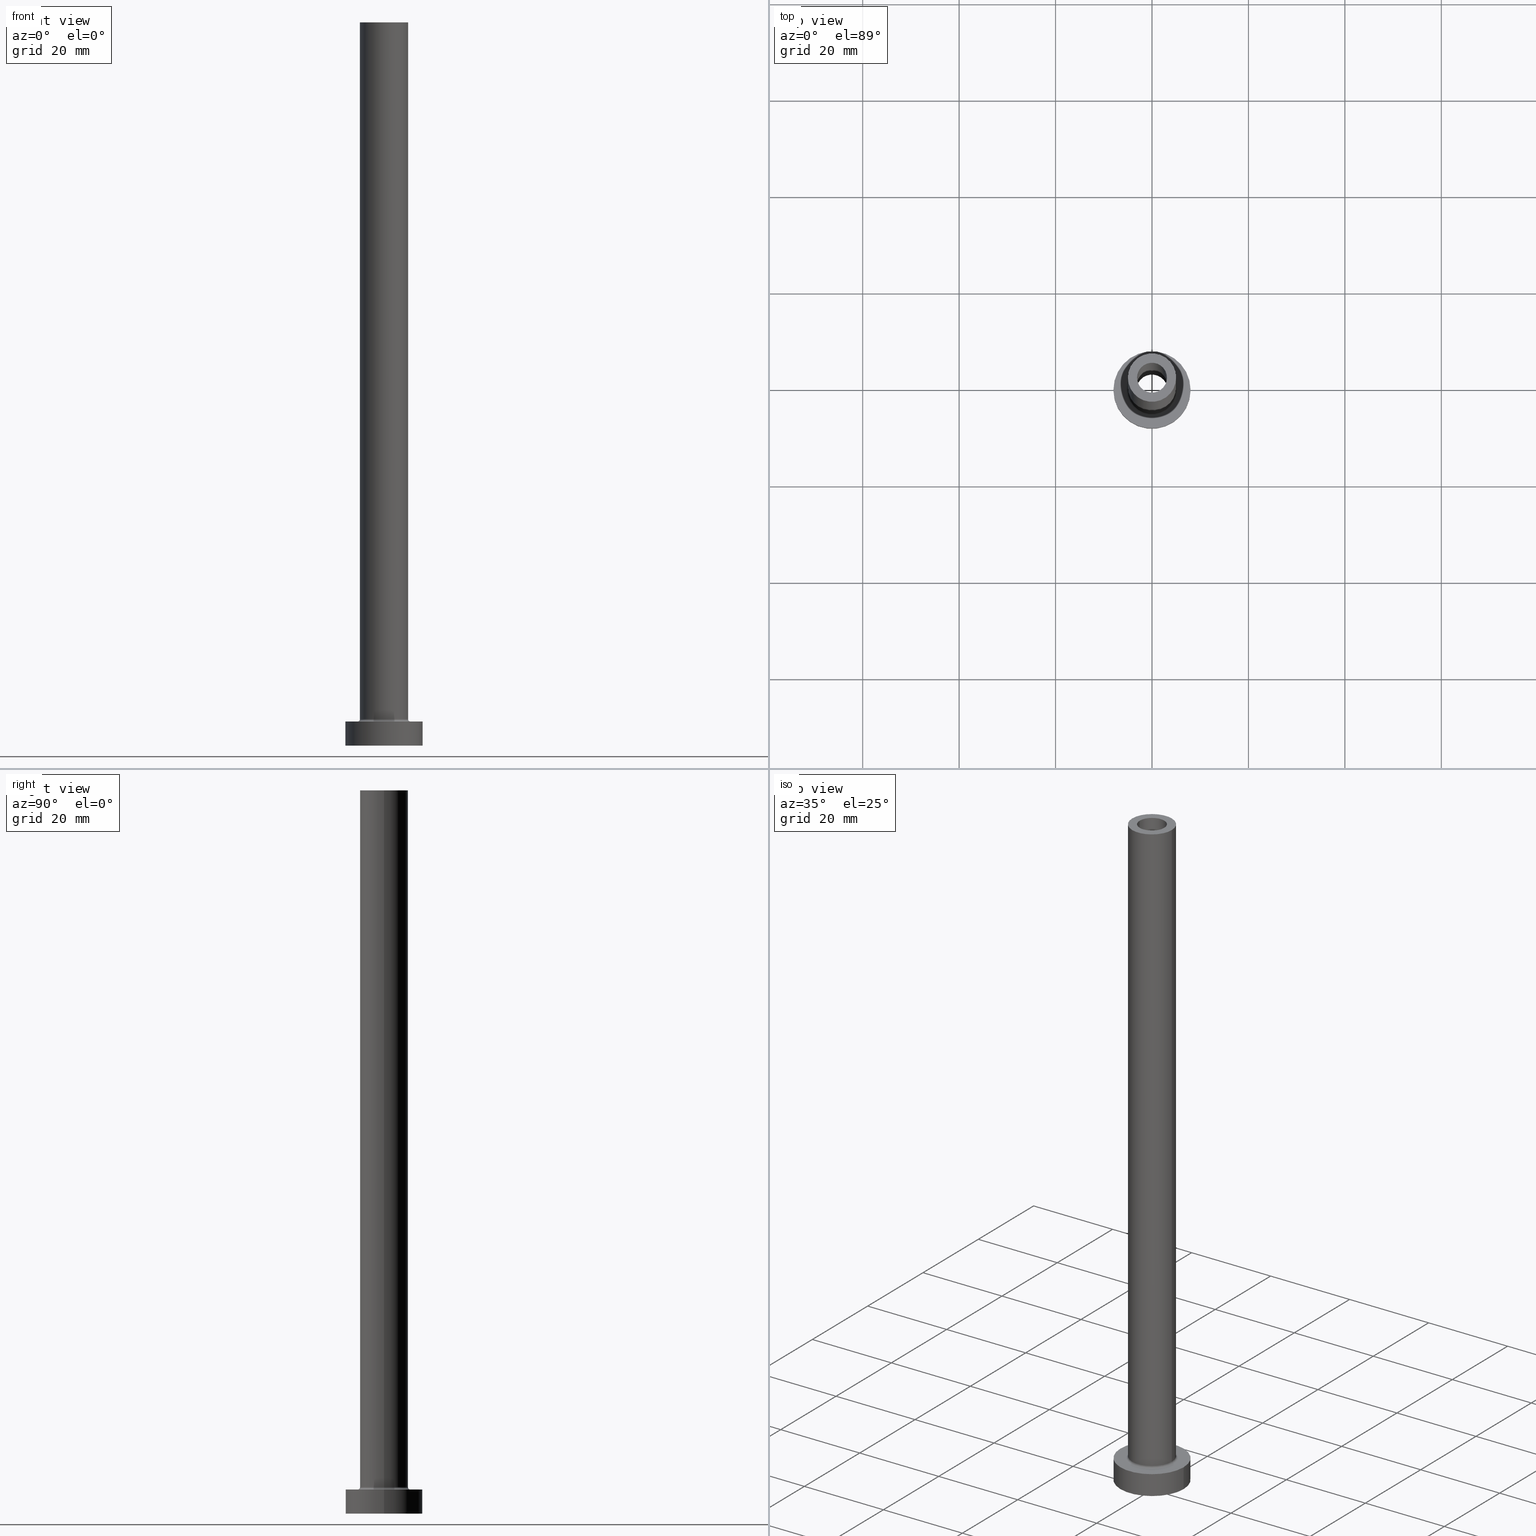
[diagram: canonical four-view strip — front | top / right | iso, engineering-drawing reading convention]
A machine part, canonical four-view strip (front | top / right | iso — engineering-drawing reading convention). The complete STEP part file that produces these views, byte-faithful:
ISO-10303-21;
HEADER;
FILE_DESCRIPTION (( 'STEP AP203' ),
    '1' );
FILE_NAME ('f30a.STEP',
    '2023-02-13T09:12:37',
    ( '' ),
    ( '' ),
    'SwSTEP 2.0',
    'SolidWorks 2019',
    '' );
FILE_SCHEMA (( 'CONFIG_CONTROL_DESIGN' ));
ENDSEC;

DATA;
#1 = DIRECTION ( 'NONE',  ( 0.000000000000000000, 0.000000000000000000, 1.000000000000000000 ) ) ;
#2 = CIRCLE ( 'NONE', #331, 3.250000000000000444 ) ;
#3 = ORIENTED_EDGE ( 'NONE', *, *, #178, .T. ) ;
#4 =( GEOMETRIC_REPRESENTATION_CONTEXT ( 3 ) GLOBAL_UNCERTAINTY_ASSIGNED_CONTEXT ( ( #282 ) ) GLOBAL_UNIT_ASSIGNED_CONTEXT ( ( #297, #262, #376 ) ) REPRESENTATION_CONTEXT ( 'NONE', 'WORKASPACE' ) );
#5 = EDGE_CURVE ( 'NONE', #99, #105, #129, .T. ) ;
#6 = VERTEX_POINT ( 'NONE', #164 ) ;
#7 = DIRECTION ( 'NONE',  ( 0.000000000000000000, 0.000000000000000000, 1.000000000000000000 ) ) ;
#8 = ORIENTED_EDGE ( 'NONE', *, *, #428, .F. ) ;
#9 = CIRCLE ( 'NONE', #196, 5.500000000000000000 ) ;
#10 = DIRECTION ( 'NONE',  ( 0.000000000000000000, -1.000000000000000000, 0.000000000000000000 ) ) ;
#11 = ADVANCED_FACE ( 'NONE', ( #56, #444 ), #168, .T. ) ;
#12 = VERTEX_POINT ( 'NONE', #343 ) ;
#13 = AXIS2_PLACEMENT_3D ( 'NONE', #446, #51, #309 ) ;
#14 = DIRECTION ( 'NONE',  ( 1.224646799147353207E-16, 1.000000000000000000, -0.000000000000000000 ) ) ;
#15 = DATE_AND_TIME ( #314, #85 ) ;
#16 = VECTOR ( 'NONE', #84, 1000.000000000000000 ) ;
#17 = ORIENTED_EDGE ( 'NONE', *, *, #428, .T. ) ;
#18 = COORDINATED_UNIVERSAL_TIME_OFFSET ( 1, 0, .AHEAD. ) ;
#19 = DIRECTION ( 'NONE',  ( 1.000000000000000000, 0.000000000000000000, 0.000000000000000000 ) ) ;
#20 = MANIFOLD_SOLID_BREP ( 'Odebrat vysunut�m4', #215 ) ;
#21 = DATE_AND_TIME ( #225, #305 ) ;
#22 = ORIENTED_EDGE ( 'NONE', *, *, #5, .T. ) ;
#23 = AXIS2_PLACEMENT_3D ( 'NONE', #217, #427, #285 ) ;
#24 = APPROVAL ( #417, 'NEUR�EN�' ) ;
#25 = CARTESIAN_POINT ( 'NONE',  ( 0.000000000000000000, 0.000000000000000000, 0.000000000000000000 ) ) ;
#26 = VERTEX_POINT ( 'NONE', #224 ) ;
#27 = EDGE_LOOP ( 'NONE', ( #117, #408, #432, #294 ) ) ;
#28 = DIRECTION ( 'NONE',  ( -1.000000000000000000, 0.000000000000000000, 0.000000000000000000 ) ) ;
#29 = ORIENTED_EDGE ( 'NONE', *, *, #130, .T. ) ;
#30 = PERSON_AND_ORGANIZATION_ROLE ( 'creator' ) ;
#31 = APPROVAL_PERSON_ORGANIZATION ( #388, #203, #457 ) ;
#32 = AXIS2_PLACEMENT_3D ( 'NONE', #280, #106, #137 ) ;
#33 = DIRECTION ( 'NONE',  ( 0.000000000000000000, 0.000000000000000000, -1.000000000000000000 ) ) ;
#34 = EDGE_CURVE ( 'NONE', #157, #363, #402, .T. ) ;
#35 = FACE_OUTER_BOUND ( 'NONE', #445, .T. ) ;
#36 = CARTESIAN_POINT ( 'NONE',  ( 3.250000000000000444, 3.980102097228898231E-16, 0.000000000000000000 ) ) ;
#37 = APPROVAL_STATUS ( 'not_yet_approved' ) ;
#38 = EDGE_CURVE ( 'NONE', #52, #363, #438, .T. ) ;
#39 = DIRECTION ( 'NONE',  ( 1.000000000000000000, 0.000000000000000000, 0.000000000000000000 ) ) ;
#40 = DIRECTION ( 'NONE',  ( 1.000000000000000000, 0.000000000000000000, 0.000000000000000000 ) ) ;
#41 = LINE ( 'NONE', #259, #93 ) ;
#42 = DIRECTION ( 'NONE',  ( 0.000000000000000000, 0.000000000000000000, 1.000000000000000000 ) ) ;
#43 = EDGE_CURVE ( 'NONE', #250, #65, #395, .T. ) ;
#44 = EDGE_LOOP ( 'NONE', ( #109, #29, #357, #8 ) ) ;
#45 = DIRECTION ( 'NONE',  ( 0.000000000000000000, 0.000000000000000000, 1.000000000000000000 ) ) ;
#46 = DIRECTION ( 'NONE',  ( 0.000000000000000000, 0.000000000000000000, 1.000000000000000000 ) ) ;
#47 = CC_DESIGN_APPROVAL ( #24, ( #322 ) ) ;
#48 = TOROIDAL_SURFACE ( 'NONE', #379, 5.500000000000000000, 0.5000000000000000000 ) ;
#49 = CARTESIAN_POINT ( 'NONE',  ( 0.000000000000000000, 0.000000000000000000, 105.0000000000000000 ) ) ;
#50 = CARTESIAN_POINT ( 'NONE',  ( 0.000000000000000000, 0.000000000000000000, 105.0000000000000000 ) ) ;
#51 = DIRECTION ( 'NONE',  ( 0.000000000000000000, 0.000000000000000000, 1.000000000000000000 ) ) ;
#52 = VERTEX_POINT ( 'NONE', #201 ) ;
#53 = LINE ( 'NONE', #128, #76 ) ;
#54 = EDGE_CURVE ( 'NONE', #58, #170, #453, .T. ) ;
#55 = CARTESIAN_POINT ( 'NONE',  ( -3.250000000000000444, 0.000000000000000000, 114.1923881554251068 ) ) ;
#56 = FACE_BOUND ( 'NONE', #283, .T. ) ;
#57 = VERTEX_POINT ( 'NONE', #345 ) ;
#58 = VERTEX_POINT ( 'NONE', #406 ) ;
#59 = ADVANCED_FACE ( 'NONE', ( #135 ), #193, .T. ) ;
#60 = CARTESIAN_POINT ( 'NONE',  ( 8.000000000000000000, 9.797174393178825657E-16, 5.000000000000000000 ) ) ;
#61 = ORIENTED_EDGE ( 'NONE', *, *, #175, .T. ) ;
#62 = AXIS2_PLACEMENT_3D ( 'NONE', #134, #373, #409 ) ;
#63 = AXIS2_PLACEMENT_3D ( 'NONE', #185, #1, #287 ) ;
#64 = CC_DESIGN_PERSON_AND_ORGANIZATION_ASSIGNMENT ( #142, #333, ( #410 ) ) ;
#65 = VERTEX_POINT ( 'NONE', #306 ) ;
#66 = EDGE_CURVE ( 'NONE', #105, #236, #120, .T. ) ;
#67 = PRODUCT_RELATED_PRODUCT_CATEGORY ( 'detail', '', ( #73 ) ) ;
#68 = AXIS2_PLACEMENT_3D ( 'NONE', #103, #247, #28 ) ;
#69 = FACE_BOUND ( 'NONE', #184, .T. ) ;
#70 = ORIENTED_EDGE ( 'NONE', *, *, #151, .F. ) ;
#71 = CC_DESIGN_PERSON_AND_ORGANIZATION_ASSIGNMENT ( #233, #199, ( #322 ) ) ;
#72 = FACE_OUTER_BOUND ( 'NONE', #27, .T. ) ;
#73 = PRODUCT ( 'f30a', 'f30a', '', ( #202 ) ) ;
#74 = DIRECTION ( 'NONE',  ( -0.000000000000000000, -0.000000000000000000, -1.000000000000000000 ) ) ;
#75 = AXIS2_PLACEMENT_3D ( 'NONE', #420, #200, #344 ) ;
#76 = VECTOR ( 'NONE', #330, 1000.000000000000000 ) ;
#77 = CARTESIAN_POINT ( 'NONE',  ( 0.000000000000000000, 0.000000000000000000, 5.000000000000000000 ) ) ;
#78 = CC_DESIGN_SECURITY_CLASSIFICATION ( #91, ( #410 ) ) ;
#79 = EDGE_LOOP ( 'NONE', ( #441, #132 ) ) ;
#80 = DIRECTION ( 'NONE',  ( -0.000000000000000000, -0.000000000000000000, -1.000000000000000000 ) ) ;
#81 = ADVANCED_FACE ( 'NONE', ( #370 ), #195, .F. ) ;
#82 = VECTOR ( 'NONE', #174, 1000.000000000000000 ) ;
#83 = ORIENTED_EDGE ( 'NONE', *, *, #130, .F. ) ;
#84 = DIRECTION ( 'NONE',  ( 0.000000000000000000, 0.000000000000000000, -1.000000000000000000 ) ) ;
#85 = LOCAL_TIME ( 10, 12, 37.00000000000000000, #440 ) ;
#86 = CARTESIAN_POINT ( 'NONE',  ( 0.000000000000000000, 0.000000000000000000, 150.0000000000000000 ) ) ;
#87 = ORIENTED_EDGE ( 'NONE', *, *, #267, .T. ) ;
#88 = DIRECTION ( 'NONE',  ( 1.000000000000000000, 0.000000000000000000, 0.000000000000000000 ) ) ;
#89 = ORIENTED_EDGE ( 'NONE', *, *, #66, .T. ) ;
#90 = DATE_AND_TIME ( #136, #167 ) ;
#91 = SECURITY_CLASSIFICATION ( '', '', #156 ) ;
#92 = DESIGN_CONTEXT ( 'detailed design', #323, 'design' ) ;
#93 = VECTOR ( 'NONE', #220, 1000.000000000000000 ) ;
#94 = DIRECTION ( 'NONE',  ( -1.000000000000000000, 0.000000000000000000, 0.000000000000000000 ) ) ;
#95 = EDGE_CURVE ( 'NONE', #57, #58, #436, .T. ) ;
#96 = EDGE_LOOP ( 'NONE', ( #437, #459 ) ) ;
#97 = CIRCLE ( 'NONE', #416, 3.250000000000000444 ) ;
#98 = CARTESIAN_POINT ( 'NONE',  ( 0.000000000000000000, 0.000000000000000000, 150.0000000000000000 ) ) ;
#99 = VERTEX_POINT ( 'NONE', #372 ) ;
#100 = APPROVAL_ROLE ( '' ) ;
#101 = DIRECTION ( 'NONE',  ( 0.000000000000000000, 0.000000000000000000, 1.000000000000000000 ) ) ;
#102 = AXIS2_PLACEMENT_3D ( 'NONE', #50, #364, #191 ) ;
#103 = CARTESIAN_POINT ( 'NONE',  ( 0.000000000000000000, 0.000000000000000000, 114.1923881554251068 ) ) ;
#104 = EDGE_CURVE ( 'NONE', #57, #112, #97, .T. ) ;
#105 = VERTEX_POINT ( 'NONE', #126 ) ;
#106 = DIRECTION ( 'NONE',  ( 0.000000000000000000, 0.000000000000000000, 1.000000000000000000 ) ) ;
#107 = ORGANIZATION ( 'NEUR�EN�', 'NEUR�EN�', '' ) ;
#108 = CIRCLE ( 'NONE', #253, 5.000000000000000000 ) ;
#109 = ORIENTED_EDGE ( 'NONE', *, *, #43, .T. ) ;
#110 = CC_DESIGN_PERSON_AND_ORGANIZATION_ASSIGNMENT ( #228, #171, ( #73 ) ) ;
#111 = DIRECTION ( 'NONE',  ( 1.000000000000000000, 0.000000000000000000, 0.000000000000000000 ) ) ;
#112 = VERTEX_POINT ( 'NONE', #413 ) ;
#113 = DIRECTION ( 'NONE',  ( 0.000000000000000000, 0.000000000000000000, 1.000000000000000000 ) ) ;
#114 = CARTESIAN_POINT ( 'NONE',  ( 0.000000000000000000, 0.000000000000000000, 5.000000000000000000 ) ) ;
#115 = LOCAL_TIME ( 10, 12, 37.00000000000000000, #18 ) ;
#116 = ORIENTED_EDGE ( 'NONE', *, *, #218, .F. ) ;
#117 = ORIENTED_EDGE ( 'NONE', *, *, #175, .F. ) ;
#118 = CARTESIAN_POINT ( 'NONE',  ( 0.000000000000000000, 0.000000000000000000, 105.0000000000000000 ) ) ;
#119 = ORIENTED_EDGE ( 'NONE', *, *, #143, .T. ) ;
#120 = CIRCLE ( 'NONE', #237, 8.000000000000000000 ) ;
#121 = DIRECTION ( 'NONE',  ( 0.000000000000000000, 0.000000000000000000, 1.000000000000000000 ) ) ;
#122 = PERSON_AND_ORGANIZATION_ROLE ( 'classification_officer' ) ;
#123 = CARTESIAN_POINT ( 'NONE',  ( 0.000000000000000000, 0.000000000000000000, 150.0000000000000000 ) ) ;
#124 = EDGE_CURVE ( 'NONE', #6, #52, #350, .T. ) ;
#125 = DIRECTION ( 'NONE',  ( 0.000000000000000000, 0.000000000000000000, 1.000000000000000000 ) ) ;
#126 = CARTESIAN_POINT ( 'NONE',  ( 8.000000000000000000, 9.797174393178825657E-16, 0.000000000000000000 ) ) ;
#127 = EDGE_LOOP ( 'NONE', ( #183, #272, #150, #87 ) ) ;
#128 = CARTESIAN_POINT ( 'NONE',  ( -3.100000000000000089, 0.000000000000000000, 150.0000000000000000 ) ) ;
#129 = LINE ( 'NONE', #60, #320 ) ;
#130 = EDGE_CURVE ( 'NONE', #65, #163, #347, .T. ) ;
#131 = CARTESIAN_POINT ( 'NONE',  ( 0.000000000000000000, 0.000000000000000000, 0.000000000000000000 ) ) ;
#132 = ORIENTED_EDGE ( 'NONE', *, *, #218, .T. ) ;
#133 = DIRECTION ( 'NONE',  ( -0.000000000000000000, -0.000000000000000000, -1.000000000000000000 ) ) ;
#134 = CARTESIAN_POINT ( 'NONE',  ( 0.000000000000000000, 0.000000000000000000, 0.000000000000000000 ) ) ;
#135 = FACE_OUTER_BOUND ( 'NONE', #275, .T. ) ;
#136 = CALENDAR_DATE ( 2023, 13, 2 ) ;
#137 = DIRECTION ( 'NONE',  ( 1.000000000000000000, 0.000000000000000000, -0.000000000000000000 ) ) ;
#138 = APPLICATION_PROTOCOL_DEFINITION ( 'international standard', 'config_control_design', 1994, #277 ) ;
#139 = AXIS2_PLACEMENT_3D ( 'NONE', #123, #101, #234 ) ;
#140 = CARTESIAN_POINT ( 'NONE',  ( -5.000000000000000000, 0.000000000000000000, 5.500000000000005329 ) ) ;
#141 = ORIENTED_EDGE ( 'NONE', *, *, #151, .T. ) ;
#142 = PERSON_AND_ORGANIZATION ( #181, #107 ) ;
#143 = EDGE_CURVE ( 'NONE', #99, #26, #145, .T. ) ;
#144 = DATE_AND_TIME ( #421, #115 ) ;
#145 = CIRCLE ( 'NONE', #429, 8.000000000000000000 ) ;
#146 = CARTESIAN_POINT ( 'NONE',  ( -8.000000000000000000, 0.000000000000000000, 0.000000000000000000 ) ) ;
#147 = DIRECTION ( 'NONE',  ( 1.000000000000000000, 0.000000000000000000, 0.000000000000000000 ) ) ;
#148 = CARTESIAN_POINT ( 'NONE',  ( 0.000000000000000000, 0.000000000000000000, 0.000000000000000000 ) ) ;
#149 = CYLINDRICAL_SURFACE ( 'NONE', #351, 8.000000000000000000 ) ;
#150 = ORIENTED_EDGE ( 'NONE', *, *, #456, .T. ) ;
#151 = EDGE_CURVE ( 'NONE', #404, #6, #452, .T. ) ;
#152 = CIRCLE ( 'NONE', #392, 3.100000000000000089 ) ;
#153 = DIRECTION ( 'NONE',  ( 1.000000000000000000, 0.000000000000000000, -0.000000000000000000 ) ) ;
#154 = DIRECTION ( 'NONE',  ( -0.000000000000000000, -0.000000000000000000, -1.000000000000000000 ) ) ;
#155 = APPROVAL_PERSON_ORGANIZATION ( #414, #261, #407 ) ;
#156 = SECURITY_CLASSIFICATION_LEVEL ( 'unclassified' ) ;
#157 = VERTEX_POINT ( 'NONE', #140 ) ;
#158 = FACE_BOUND ( 'NONE', #96, .T. ) ;
#159 = ADVANCED_FACE ( 'NONE', ( #69, #318 ), #207, .T. ) ;
#160 = CARTESIAN_POINT ( 'NONE',  ( 0.000000000000000000, 0.000000000000000000, 150.0000000000000000 ) ) ;
#161 = CARTESIAN_POINT ( 'NONE',  ( 0.000000000000000000, 0.000000000000000000, 5.000000000000000000 ) ) ;
#162 = CIRCLE ( 'NONE', #418, 5.000000000000000000 ) ;
#163 = VERTEX_POINT ( 'NONE', #354 ) ;
#164 = CARTESIAN_POINT ( 'NONE',  ( 5.000000000000000000, 6.123233995736766282E-16, 5.500000000000005329 ) ) ;
#165 = ADVANCED_FACE ( 'NONE', ( #35 ), #356, .F. ) ;
#166 = DIRECTION ( 'NONE',  ( 1.000000000000000000, 0.000000000000000000, 0.000000000000000000 ) ) ;
#167 = LOCAL_TIME ( 10, 12, 37.00000000000000000, #239 ) ;
#168 = PLANE ( 'NONE',  #13 ) ;
#169 = APPROVAL_STATUS ( 'not_yet_approved' ) ;
#170 = VERTEX_POINT ( 'NONE', #36 ) ;
#171 = PERSON_AND_ORGANIZATION_ROLE ( 'design_owner' ) ;
#172 = CARTESIAN_POINT ( 'NONE',  ( -5.500000000000000000, 6.735557395310442023E-16, 5.000000000000002665 ) ) ;
#173 = CARTESIAN_POINT ( 'NONE',  ( 3.100000000000000089, 3.796405077356793932E-16, 150.0000000000000000 ) ) ;
#174 = DIRECTION ( 'NONE',  ( 0.000000000000000000, 0.000000000000000000, -1.000000000000000000 ) ) ;
#175 = EDGE_CURVE ( 'NONE', #112, #170, #316, .T. ) ;
#176 = AXIS2_PLACEMENT_3D ( 'NONE', #324, #455, #147 ) ;
#177 = DIRECTION ( 'NONE',  ( -1.000000000000000000, 0.000000000000000000, 0.000000000000000000 ) ) ;
#178 = EDGE_CURVE ( 'NONE', #157, #6, #162, .T. ) ;
#179 = EDGE_LOOP ( 'NONE', ( #425, #327, #361, #308 ) ) ;
#180 = DIRECTION ( 'NONE',  ( 1.000000000000000000, 0.000000000000000000, 0.000000000000000000 ) ) ;
#181 = PERSON ( 'NEUR�EN�', 'NEUR�EN�', 'NEUR�EN�', ('NEUR�EN�'), ('NEUR�EN�'), ('NEUR�EN�') ) ;
#182 = CARTESIAN_POINT ( 'NONE',  ( -3.100000000000000089, 0.000000000000000000, 150.0000000000000000 ) ) ;
#183 = ORIENTED_EDGE ( 'NONE', *, *, #5, .F. ) ;
#184 = EDGE_LOOP ( 'NONE', ( #319, #255 ) ) ;
#185 = CARTESIAN_POINT ( 'NONE',  ( 0.000000000000000000, 0.000000000000000000, 5.500000000000005329 ) ) ;
#186 = TOROIDAL_SURFACE ( 'NONE', #346, 5.500000000000000000, 0.5000000000000000000 ) ;
#187 = CARTESIAN_POINT ( 'NONE',  ( 0.000000000000000000, 0.000000000000000000, 0.000000000000000000 ) ) ;
#188 = EDGE_CURVE ( 'NONE', #6, #157, #290, .T. ) ;
#189 = FACE_OUTER_BOUND ( 'NONE', #430, .T. ) ;
#190 = ORIENTED_EDGE ( 'NONE', *, *, #34, .F. ) ;
#191 = DIRECTION ( 'NONE',  ( 1.000000000000000000, 0.000000000000000000, 0.000000000000000000 ) ) ;
#192 = CC_DESIGN_PERSON_AND_ORGANIZATION_ASSIGNMENT ( #295, #122, ( #91 ) ) ;
#193 = CYLINDRICAL_SURFACE ( 'NONE', #257, 5.000000000000000000 ) ;
#194 = PLANE ( 'NONE',  #342 ) ;
#195 = CYLINDRICAL_SURFACE ( 'NONE', #296, 3.100000000000000089 ) ;
#196 = AXIS2_PLACEMENT_3D ( 'NONE', #114, #74, #358 ) ;
#197 = APPLICATION_PROTOCOL_DEFINITION ( 'international standard', 'config_control_design', 1994, #323 ) ;
#198 = ADVANCED_FACE ( 'NONE', ( #332 ), #48, .F. ) ;
#199 = PERSON_AND_ORGANIZATION_ROLE ( 'creator' ) ;
#200 = DIRECTION ( 'NONE',  ( -0.000000000000000000, -0.000000000000000000, -1.000000000000000000 ) ) ;
#201 = CARTESIAN_POINT ( 'NONE',  ( 5.500000000000000000, 0.000000000000000000, 5.000000000000002665 ) ) ;
#202 = MECHANICAL_CONTEXT ( 'NONE', #277, 'mechanical' ) ;
#203 = APPROVAL ( #37, 'NEUR�EN�' ) ;
#204 = ORIENTED_EDGE ( 'NONE', *, *, #188, .F. ) ;
#205 = EDGE_CURVE ( 'NONE', #12, #157, #293, .T. ) ;
#206 = AXIS2_PLACEMENT_3D ( 'NONE', #210, #398, #426 ) ;
#207 = PLANE ( 'NONE',  #32 ) ;
#208 = PRODUCT_DEFINITION_SHAPE ( 'NONE', 'NONE',  #322 ) ;
#209 = VERTEX_POINT ( 'NONE', #328 ) ;
#210 = CARTESIAN_POINT ( 'NONE',  ( 0.000000000000000000, 0.000000000000000000, 114.1923881554251068 ) ) ;
#211 = EDGE_CURVE ( 'NONE', #163, #209, #222, .T. ) ;
#212 = DIRECTION ( 'NONE',  ( -1.000000000000000000, 0.000000000000000000, 0.000000000000000000 ) ) ;
#213 = DIRECTION ( 'NONE',  ( 1.000000000000000000, 0.000000000000000000, 0.000000000000000000 ) ) ;
#214 = CARTESIAN_POINT ( 'NONE',  ( 0.000000000000000000, 0.000000000000000000, 150.0000000000000000 ) ) ;
#215 = CLOSED_SHELL ( 'NONE', ( #447, #165, #198, #59, #240, #335, #11, #442, #355, #159, #399, #274, #229, #81 ) ) ;
#216 = FACE_OUTER_BOUND ( 'NONE', #281, .T. ) ;
#217 = CARTESIAN_POINT ( 'NONE',  ( 0.000000000000000000, 0.000000000000000000, 0.000000000000000000 ) ) ;
#218 = EDGE_CURVE ( 'NONE', #404, #12, #108, .T. ) ;
#219 = EDGE_LOOP ( 'NONE', ( #83, #415, #17, #303 ) ) ;
#220 = DIRECTION ( 'NONE',  ( -0.000000000000000000, -0.000000000000000000, -1.000000000000000000 ) ) ;
#221 = DIRECTION ( 'NONE',  ( 0.000000000000000000, 0.000000000000000000, 1.000000000000000000 ) ) ;
#222 = CIRCLE ( 'NONE', #340, 3.100000000000000089 ) ;
#223 = ORIENTED_EDGE ( 'NONE', *, *, #205, .F. ) ;
#224 = CARTESIAN_POINT ( 'NONE',  ( -8.000000000000000000, 0.000000000000000000, 5.000000000000000000 ) ) ;
#225 = CALENDAR_DATE ( 2023, 13, 2 ) ;
#226 = DIRECTION ( 'NONE',  ( -1.000000000000000000, 0.000000000000000000, 0.000000000000000000 ) ) ;
#227 = EDGE_LOOP ( 'NONE', ( #238, #380 ) ) ;
#228 = PERSON_AND_ORGANIZATION ( #181, #107 ) ;
#229 = ADVANCED_FACE ( 'NONE', ( #431, #366 ), #256, .F. ) ;
#230 = DIRECTION ( 'NONE',  ( -0.000000000000000000, -0.000000000000000000, -1.000000000000000000 ) ) ;
#231 = VECTOR ( 'NONE', #154, 1000.000000000000000 ) ;
#232 = ORIENTED_EDGE ( 'NONE', *, *, #302, .T. ) ;
#233 = PERSON_AND_ORGANIZATION ( #181, #107 ) ;
#234 = DIRECTION ( 'NONE',  ( 1.000000000000000000, 0.000000000000000000, 0.000000000000000000 ) ) ;
#235 = DIRECTION ( 'NONE',  ( 0.000000000000000000, 0.000000000000000000, 1.000000000000000000 ) ) ;
#236 = VERTEX_POINT ( 'NONE', #146 ) ;
#237 = AXIS2_PLACEMENT_3D ( 'NONE', #25, #7, #88 ) ;
#238 = ORIENTED_EDGE ( 'NONE', *, *, #267, .F. ) ;
#239 = COORDINATED_UNIVERSAL_TIME_OFFSET ( 1, 0, .AHEAD. ) ;
#240 = ADVANCED_FACE ( 'NONE', ( #189 ), #149, .T. ) ;
#241 = ORIENTED_EDGE ( 'NONE', *, *, #251, .T. ) ;
#242 = AXIS2_PLACEMENT_3D ( 'NONE', #77, #252, #212 ) ;
#243 = DIRECTION ( 'NONE',  ( 0.000000000000000000, 0.000000000000000000, 1.000000000000000000 ) ) ;
#244 = ORIENTED_EDGE ( 'NONE', *, *, #188, .T. ) ;
#245 = DATE_AND_TIME ( #390, #424 ) ;
#246 = CIRCLE ( 'NONE', #102, 3.250000000000000444 ) ;
#247 = DIRECTION ( 'NONE',  ( 0.000000000000000000, 0.000000000000000000, -1.000000000000000000 ) ) ;
#248 = DATE_TIME_ROLE ( 'creation_date' ) ;
#249 = DIRECTION ( 'NONE',  ( 0.000000000000000000, 0.000000000000000000, 1.000000000000000000 ) ) ;
#250 = VERTEX_POINT ( 'NONE', #182 ) ;
#251 = EDGE_CURVE ( 'NONE', #363, #52, #9, .T. ) ;
#252 = DIRECTION ( 'NONE',  ( -0.000000000000000000, -0.000000000000000000, -1.000000000000000000 ) ) ;
#253 = AXIS2_PLACEMENT_3D ( 'NONE', #214, #249, #111 ) ;
#254 = FACE_OUTER_BOUND ( 'NONE', #127, .T. ) ;
#255 = ORIENTED_EDGE ( 'NONE', *, *, #381, .F. ) ;
#256 = PLANE ( 'NONE',  #365 ) ;
#257 = AXIS2_PLACEMENT_3D ( 'NONE', #336, #230, #226 ) ;
#258 = ORIENTED_EDGE ( 'NONE', *, *, #95, .F. ) ;
#259 = CARTESIAN_POINT ( 'NONE',  ( -8.000000000000000000, 0.000000000000000000, 5.000000000000000000 ) ) ;
#260 = CYLINDRICAL_SURFACE ( 'NONE', #206, 3.250000000000000444 ) ;
#261 = APPROVAL ( #169, 'NEUR�EN�' ) ;
#262 =( NAMED_UNIT ( * ) PLANE_ANGLE_UNIT ( ) SI_UNIT ( $, .RADIAN. ) );
#263 = VECTOR ( 'NONE', #321, 1000.000000000000000 ) ;
#264 = DIRECTION ( 'NONE',  ( 0.000000000000000000, 0.000000000000000000, 1.000000000000000000 ) ) ;
#265 = EDGE_LOOP ( 'NONE', ( #232, #298 ) ) ;
#266 = FACE_OUTER_BOUND ( 'NONE', #44, .T. ) ;
#267 = EDGE_CURVE ( 'NONE', #236, #105, #300, .T. ) ;
#268 = DIRECTION ( 'NONE',  ( -1.000000000000000000, 1.224646799147351482E-16, 0.000000000000000000 ) ) ;
#269 = SHAPE_DEFINITION_REPRESENTATION ( #208, #338 ) ;
#270 = EDGE_LOOP ( 'NONE', ( #400, #119 ) ) ;
#271 = CARTESIAN_POINT ( 'NONE',  ( 0.000000000000000000, 0.000000000000000000, 105.0000000000000000 ) ) ;
#272 = ORIENTED_EDGE ( 'NONE', *, *, #278, .F. ) ;
#273 = DIRECTION ( 'NONE',  ( 1.000000000000000000, 0.000000000000000000, 0.000000000000000000 ) ) ;
#274 = ADVANCED_FACE ( 'NONE', ( #72 ), #260, .F. ) ;
#275 = EDGE_LOOP ( 'NONE', ( #116, #141, #244, #223 ) ) ;
#276 = CYLINDRICAL_SURFACE ( 'NONE', #75, 5.000000000000000000 ) ;
#277 = APPLICATION_CONTEXT ( 'configuration controlled 3d designs of mechanical parts and assemblies' ) ;
#278 = EDGE_CURVE ( 'NONE', #26, #99, #449, .T. ) ;
#279 = AXIS2_PLACEMENT_3D ( 'NONE', #161, #313, #439 ) ;
#280 = CARTESIAN_POINT ( 'NONE',  ( 0.000000000000000000, 0.000000000000000000, 150.0000000000000000 ) ) ;
#281 = EDGE_LOOP ( 'NONE', ( #190, #204, #329, #348 ) ) ;
#282 = UNCERTAINTY_MEASURE_WITH_UNIT (LENGTH_MEASURE( 1.000000000000000082E-05 ), #297, 'distance_accuracy_value', 'NONE');
#283 = EDGE_LOOP ( 'NONE', ( #312, #241 ) ) ;
#284 = AXIS2_PLACEMENT_3D ( 'NONE', #288, #125, #213 ) ;
#285 = DIRECTION ( 'NONE',  ( 1.000000000000000000, 0.000000000000000000, 0.000000000000000000 ) ) ;
#286 = CARTESIAN_POINT ( 'NONE',  ( 0.000000000000000000, 0.000000000000000000, 105.0000000000000000 ) ) ;
#287 = DIRECTION ( 'NONE',  ( 1.000000000000000000, 0.000000000000000000, 0.000000000000000000 ) ) ;
#288 = CARTESIAN_POINT ( 'NONE',  ( 0.000000000000000000, 0.000000000000000000, 150.0000000000000000 ) ) ;
#289 = CC_DESIGN_APPROVAL ( #203, ( #410 ) ) ;
#290 = CIRCLE ( 'NONE', #63, 5.000000000000000000 ) ;
#291 = DIRECTION ( 'NONE',  ( 0.000000000000000000, 0.000000000000000000, -1.000000000000000000 ) ) ;
#292 = DIRECTION ( 'NONE',  ( 1.000000000000000000, 0.000000000000000000, 0.000000000000000000 ) ) ;
#293 = LINE ( 'NONE', #334, #231 ) ;
#294 = ORIENTED_EDGE ( 'NONE', *, *, #54, .T. ) ;
#295 = PERSON_AND_ORGANIZATION ( #181, #107 ) ;
#296 = AXIS2_PLACEMENT_3D ( 'NONE', #86, #301, #94 ) ;
#297 =( LENGTH_UNIT ( ) NAMED_UNIT ( * ) SI_UNIT ( .MILLI., .METRE. ) );
#298 = ORIENTED_EDGE ( 'NONE', *, *, #211, .T. ) ;
#299 = FACE_OUTER_BOUND ( 'NONE', #227, .T. ) ;
#300 = CIRCLE ( 'NONE', #23, 8.000000000000000000 ) ;
#301 = DIRECTION ( 'NONE',  ( 0.000000000000000000, 0.000000000000000000, -1.000000000000000000 ) ) ;
#302 = EDGE_CURVE ( 'NONE', #209, #163, #152, .T. ) ;
#303 = ORIENTED_EDGE ( 'NONE', *, *, #211, .F. ) ;
#304 = DIRECTION ( 'NONE',  ( -0.000000000000000000, -0.000000000000000000, -1.000000000000000000 ) ) ;
#305 = LOCAL_TIME ( 10, 12, 37.00000000000000000, #367 ) ;
#306 = CARTESIAN_POINT ( 'NONE',  ( 3.100000000000000089, 3.796405077356793932E-16, 150.0000000000000000 ) ) ;
#307 = DATE_TIME_ROLE ( 'classification_date' ) ;
#308 = ORIENTED_EDGE ( 'NONE', *, *, #124, .F. ) ;
#309 = DIRECTION ( 'NONE',  ( 1.000000000000000000, 0.000000000000000000, -0.000000000000000000 ) ) ;
#310 = ORIENTED_EDGE ( 'NONE', *, *, #387, .T. ) ;
#311 = APPROVAL_DATE_TIME ( #15, #261 ) ;
#312 = ORIENTED_EDGE ( 'NONE', *, *, #38, .T. ) ;
#313 = DIRECTION ( 'NONE',  ( -0.000000000000000000, -0.000000000000000000, -1.000000000000000000 ) ) ;
#314 = CALENDAR_DATE ( 2023, 13, 2 ) ;
#315 = ORIENTED_EDGE ( 'NONE', *, *, #205, .T. ) ;
#316 = LINE ( 'NONE', #450, #435 ) ;
#317 = CC_DESIGN_PERSON_AND_ORGANIZATION_ASSIGNMENT ( #349, #30, ( #410 ) ) ;
#318 = FACE_OUTER_BOUND ( 'NONE', #79, .T. ) ;
#319 = ORIENTED_EDGE ( 'NONE', *, *, #43, .F. ) ;
#320 = VECTOR ( 'NONE', #133, 1000.000000000000000 ) ;
#321 = DIRECTION ( 'NONE',  ( -0.000000000000000000, -0.000000000000000000, -1.000000000000000000 ) ) ;
#322 = PRODUCT_DEFINITION ( 'NEZN�M�', '', #410, #92 ) ;
#323 = APPLICATION_CONTEXT ( 'configuration controlled 3d designs of mechanical parts and assemblies' ) ;
#324 = CARTESIAN_POINT ( 'NONE',  ( 0.000000000000000000, 0.000000000000000000, 5.000000000000000000 ) ) ;
#325 = CARTESIAN_POINT ( 'NONE',  ( 0.000000000000000000, 0.000000000000000000, 5.500000000000005329 ) ) ;
#326 = AXIS2_PLACEMENT_3D ( 'NONE', #131, #374, #166 ) ;
#327 = ORIENTED_EDGE ( 'NONE', *, *, #34, .T. ) ;
#328 = CARTESIAN_POINT ( 'NONE',  ( -3.100000000000000089, 0.000000000000000000, 105.0000000000000000 ) ) ;
#329 = ORIENTED_EDGE ( 'NONE', *, *, #124, .T. ) ;
#330 = DIRECTION ( 'NONE',  ( 0.000000000000000000, 0.000000000000000000, -1.000000000000000000 ) ) ;
#331 = AXIS2_PLACEMENT_3D ( 'NONE', #148, #304, #180 ) ;
#332 = FACE_OUTER_BOUND ( 'NONE', #179, .T. ) ;
#333 = PERSON_AND_ORGANIZATION_ROLE ( 'design_supplier' ) ;
#334 = CARTESIAN_POINT ( 'NONE',  ( -5.000000000000000000, 0.000000000000000000, 150.0000000000000000 ) ) ;
#335 = ADVANCED_FACE ( 'NONE', ( #254 ), #394, .T. ) ;
#336 = CARTESIAN_POINT ( 'NONE',  ( 0.000000000000000000, 0.000000000000000000, 150.0000000000000000 ) ) ;
#337 = ORIENTED_EDGE ( 'NONE', *, *, #456, .F. ) ;
#338 = ADVANCED_BREP_SHAPE_REPRESENTATION ( 'f30a', ( #20, #62 ), #4 ) ;
#339 = CIRCLE ( 'NONE', #139, 3.100000000000000089 ) ;
#340 = AXIS2_PLACEMENT_3D ( 'NONE', #118, #42, #434 ) ;
#341 = CARTESIAN_POINT ( 'NONE',  ( 5.500000000000000000, 0.000000000000000000, 5.500000000000005329 ) ) ;
#342 = AXIS2_PLACEMENT_3D ( 'NONE', #187, #264, #153 ) ;
#343 = CARTESIAN_POINT ( 'NONE',  ( -5.000000000000000000, 0.000000000000000000, 150.0000000000000000 ) ) ;
#344 = DIRECTION ( 'NONE',  ( -1.000000000000000000, 0.000000000000000000, 0.000000000000000000 ) ) ;
#345 = CARTESIAN_POINT ( 'NONE',  ( -3.250000000000000444, 0.000000000000000000, 105.0000000000000000 ) ) ;
#346 = AXIS2_PLACEMENT_3D ( 'NONE', #362, #45, #292 ) ;
#347 = LINE ( 'NONE', #173, #82 ) ;
#348 = ORIENTED_EDGE ( 'NONE', *, *, #251, .F. ) ;
#349 = PERSON_AND_ORGANIZATION ( #181, #107 ) ;
#350 = CIRCLE ( 'NONE', #454, 0.5000000000000004441 ) ;
#351 = AXIS2_PLACEMENT_3D ( 'NONE', #396, #80, #177 ) ;
#352 = APPROVAL_DATE_TIME ( #245, #203 ) ;
#353 = AXIS2_PLACEMENT_3D ( 'NONE', #160, #405, #360 ) ;
#354 = CARTESIAN_POINT ( 'NONE',  ( 3.100000000000000089, 3.796405077356793932E-16, 105.0000000000000000 ) ) ;
#355 = ADVANCED_FACE ( 'NONE', ( #359 ), #276, .T. ) ;
#356 = CYLINDRICAL_SURFACE ( 'NONE', #68, 3.250000000000000444 ) ;
#357 = ORIENTED_EDGE ( 'NONE', *, *, #302, .F. ) ;
#358 = DIRECTION ( 'NONE',  ( 1.000000000000000000, 0.000000000000000000, 0.000000000000000000 ) ) ;
#359 = FACE_OUTER_BOUND ( 'NONE', #443, .T. ) ;
#360 = DIRECTION ( 'NONE',  ( -1.000000000000000000, 0.000000000000000000, 0.000000000000000000 ) ) ;
#361 = ORIENTED_EDGE ( 'NONE', *, *, #38, .F. ) ;
#362 = CARTESIAN_POINT ( 'NONE',  ( 0.000000000000000000, 0.000000000000000000, 5.500000000000005329 ) ) ;
#363 = VERTEX_POINT ( 'NONE', #172 ) ;
#364 = DIRECTION ( 'NONE',  ( 0.000000000000000000, 0.000000000000000000, 1.000000000000000000 ) ) ;
#365 = AXIS2_PLACEMENT_3D ( 'NONE', #49, #121, #389 ) ;
#366 = FACE_OUTER_BOUND ( 'NONE', #448, .T. ) ;
#367 = COORDINATED_UNIVERSAL_TIME_OFFSET ( 1, 0, .AHEAD. ) ;
#368 = ORIENTED_EDGE ( 'NONE', *, *, #143, .F. ) ;
#369 = CC_DESIGN_DATE_AND_TIME_ASSIGNMENT ( #144, #248, ( #322 ) ) ;
#370 = FACE_OUTER_BOUND ( 'NONE', #219, .T. ) ;
#371 = PERSON_AND_ORGANIZATION ( #181, #107 ) ;
#372 = CARTESIAN_POINT ( 'NONE',  ( 8.000000000000000000, 9.797174393178825657E-16, 5.000000000000000000 ) ) ;
#373 = DIRECTION ( 'NONE',  ( 0.000000000000000000, 0.000000000000000000, 1.000000000000000000 ) ) ;
#374 = DIRECTION ( 'NONE',  ( -0.000000000000000000, -0.000000000000000000, -1.000000000000000000 ) ) ;
#375 = ORIENTED_EDGE ( 'NONE', *, *, #393, .F. ) ;
#376 =( NAMED_UNIT ( * ) SI_UNIT ( $, .STERADIAN. ) SOLID_ANGLE_UNIT ( ) );
#377 = DIRECTION ( 'NONE',  ( 0.000000000000000000, 0.000000000000000000, 1.000000000000000000 ) ) ;
#378 = APPROVAL_DATE_TIME ( #90, #24 ) ;
#379 = AXIS2_PLACEMENT_3D ( 'NONE', #458, #221, #40 ) ;
#380 = ORIENTED_EDGE ( 'NONE', *, *, #66, .F. ) ;
#381 = EDGE_CURVE ( 'NONE', #65, #250, #339, .T. ) ;
#382 = AXIS2_PLACEMENT_3D ( 'NONE', #403, #14, #268 ) ;
#383 = DIRECTION ( 'NONE',  ( 1.000000000000000000, 0.000000000000000000, 0.000000000000000000 ) ) ;
#384 = CARTESIAN_POINT ( 'NONE',  ( 5.000000000000000000, 6.123233995736766282E-16, 150.0000000000000000 ) ) ;
#385 = CIRCLE ( 'NONE', #284, 5.000000000000000000 ) ;
#386 = ORIENTED_EDGE ( 'NONE', *, *, #104, .F. ) ;
#387 = EDGE_CURVE ( 'NONE', #170, #58, #2, .T. ) ;
#388 = PERSON_AND_ORGANIZATION ( #181, #107 ) ;
#389 = DIRECTION ( 'NONE',  ( 1.000000000000000000, 0.000000000000000000, -0.000000000000000000 ) ) ;
#390 = CALENDAR_DATE ( 2023, 13, 2 ) ;
#391 = DIRECTION ( 'NONE',  ( 1.000000000000000000, 0.000000000000000000, 0.000000000000000000 ) ) ;
#392 = AXIS2_PLACEMENT_3D ( 'NONE', #286, #113, #391 ) ;
#393 = EDGE_CURVE ( 'NONE', #12, #404, #385, .T. ) ;
#394 = CYLINDRICAL_SURFACE ( 'NONE', #242, 8.000000000000000000 ) ;
#395 = CIRCLE ( 'NONE', #397, 3.100000000000000089 ) ;
#396 = CARTESIAN_POINT ( 'NONE',  ( 0.000000000000000000, 0.000000000000000000, 5.000000000000000000 ) ) ;
#397 = AXIS2_PLACEMENT_3D ( 'NONE', #98, #377, #19 ) ;
#398 = DIRECTION ( 'NONE',  ( 0.000000000000000000, 0.000000000000000000, -1.000000000000000000 ) ) ;
#399 = ADVANCED_FACE ( 'NONE', ( #216 ), #186, .F. ) ;
#400 = ORIENTED_EDGE ( 'NONE', *, *, #278, .T. ) ;
#401 = CC_DESIGN_DATE_AND_TIME_ASSIGNMENT ( #21, #307, ( #91 ) ) ;
#402 = CIRCLE ( 'NONE', #382, 0.5000000000000004441 ) ;
#403 = CARTESIAN_POINT ( 'NONE',  ( -5.500000000000000000, 6.735557395310442023E-16, 5.500000000000005329 ) ) ;
#404 = VERTEX_POINT ( 'NONE', #461 ) ;
#405 = DIRECTION ( 'NONE',  ( 0.000000000000000000, 0.000000000000000000, -1.000000000000000000 ) ) ;
#406 = CARTESIAN_POINT ( 'NONE',  ( -3.250000000000000444, 0.000000000000000000, 0.000000000000000000 ) ) ;
#407 = APPROVAL_ROLE ( '' ) ;
#408 = ORIENTED_EDGE ( 'NONE', *, *, #422, .T. ) ;
#409 = DIRECTION ( 'NONE',  ( 1.000000000000000000, 0.000000000000000000, 0.000000000000000000 ) ) ;
#410 = PRODUCT_DEFINITION_FORMATION_WITH_SPECIFIED_SOURCE ( 'LIBOVOLN�', '', #73, .NOT_KNOWN. ) ;
#411 = APPROVAL_PERSON_ORGANIZATION ( #371, #24, #100 ) ;
#412 = ORIENTED_EDGE ( 'NONE', *, *, #422, .F. ) ;
#413 = CARTESIAN_POINT ( 'NONE',  ( 3.250000000000000444, 3.980102097228898231E-16, 105.0000000000000000 ) ) ;
#414 = PERSON_AND_ORGANIZATION ( #181, #107 ) ;
#415 = ORIENTED_EDGE ( 'NONE', *, *, #381, .T. ) ;
#416 = AXIS2_PLACEMENT_3D ( 'NONE', #271, #235, #273 ) ;
#417 = APPROVAL_STATUS ( 'not_yet_approved' ) ;
#418 = AXIS2_PLACEMENT_3D ( 'NONE', #325, #46, #39 ) ;
#419 = COORDINATED_UNIVERSAL_TIME_OFFSET ( 1, 0, .AHEAD. ) ;
#420 = CARTESIAN_POINT ( 'NONE',  ( 0.000000000000000000, 0.000000000000000000, 150.0000000000000000 ) ) ;
#421 = CALENDAR_DATE ( 2023, 13, 2 ) ;
#422 = EDGE_CURVE ( 'NONE', #112, #57, #246, .T. ) ;
#423 = CARTESIAN_POINT ( 'NONE',  ( 0.000000000000000000, 0.000000000000000000, 5.000000000000000000 ) ) ;
#424 = LOCAL_TIME ( 10, 12, 37.00000000000000000, #419 ) ;
#425 = ORIENTED_EDGE ( 'NONE', *, *, #178, .F. ) ;
#426 = DIRECTION ( 'NONE',  ( -1.000000000000000000, 0.000000000000000000, 0.000000000000000000 ) ) ;
#427 = DIRECTION ( 'NONE',  ( 0.000000000000000000, 0.000000000000000000, 1.000000000000000000 ) ) ;
#428 = EDGE_CURVE ( 'NONE', #250, #209, #53, .T. ) ;
#429 = AXIS2_PLACEMENT_3D ( 'NONE', #423, #243, #383 ) ;
#430 = EDGE_LOOP ( 'NONE', ( #368, #22, #89, #337 ) ) ;
#431 = FACE_BOUND ( 'NONE', #265, .T. ) ;
#432 = ORIENTED_EDGE ( 'NONE', *, *, #95, .T. ) ;
#433 = CYLINDRICAL_SURFACE ( 'NONE', #353, 3.100000000000000089 ) ;
#434 = DIRECTION ( 'NONE',  ( 1.000000000000000000, 0.000000000000000000, 0.000000000000000000 ) ) ;
#435 = VECTOR ( 'NONE', #291, 1000.000000000000000 ) ;
#436 = LINE ( 'NONE', #55, #16 ) ;
#437 = ORIENTED_EDGE ( 'NONE', *, *, #54, .F. ) ;
#438 = CIRCLE ( 'NONE', #279, 5.500000000000000000 ) ;
#439 = DIRECTION ( 'NONE',  ( 1.000000000000000000, 0.000000000000000000, 0.000000000000000000 ) ) ;
#440 = COORDINATED_UNIVERSAL_TIME_OFFSET ( 1, 0, .AHEAD. ) ;
#441 = ORIENTED_EDGE ( 'NONE', *, *, #393, .T. ) ;
#442 = ADVANCED_FACE ( 'NONE', ( #158, #299 ), #194, .F. ) ;
#443 = EDGE_LOOP ( 'NONE', ( #70, #375, #315, #3 ) ) ;
#444 = FACE_OUTER_BOUND ( 'NONE', #270, .T. ) ;
#445 = EDGE_LOOP ( 'NONE', ( #460, #61, #310, #258 ) ) ;
#446 = CARTESIAN_POINT ( 'NONE',  ( 0.000000000000000000, 0.000000000000000000, 5.000000000000000000 ) ) ;
#447 = ADVANCED_FACE ( 'NONE', ( #266 ), #433, .F. ) ;
#448 = EDGE_LOOP ( 'NONE', ( #386, #412 ) ) ;
#449 = CIRCLE ( 'NONE', #176, 8.000000000000000000 ) ;
#450 = CARTESIAN_POINT ( 'NONE',  ( 3.250000000000000444, 3.980102097228898231E-16, 114.1923881554251068 ) ) ;
#451 = CC_DESIGN_APPROVAL ( #261, ( #91 ) ) ;
#452 = LINE ( 'NONE', #384, #263 ) ;
#453 = CIRCLE ( 'NONE', #326, 3.250000000000000444 ) ;
#454 = AXIS2_PLACEMENT_3D ( 'NONE', #341, #10, #33 ) ;
#455 = DIRECTION ( 'NONE',  ( 0.000000000000000000, 0.000000000000000000, 1.000000000000000000 ) ) ;
#456 = EDGE_CURVE ( 'NONE', #26, #236, #41, .T. ) ;
#457 = APPROVAL_ROLE ( '' ) ;
#458 = CARTESIAN_POINT ( 'NONE',  ( 0.000000000000000000, 0.000000000000000000, 5.500000000000005329 ) ) ;
#459 = ORIENTED_EDGE ( 'NONE', *, *, #387, .F. ) ;
#460 = ORIENTED_EDGE ( 'NONE', *, *, #104, .T. ) ;
#461 = CARTESIAN_POINT ( 'NONE',  ( 5.000000000000000000, 6.123233995736766282E-16, 150.0000000000000000 ) ) ;
ENDSEC;
END-ISO-10303-21;
